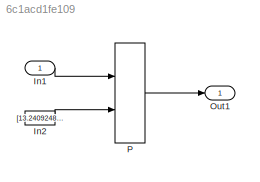
MODEL slx_6c1acd1fe109
KIND model
CONFIG AbsTol = auto
CONFIG EnableMultiTasking = off
CONFIG FixedStep = auto
CONFIG MaxStep = auto
CONFIG MinStep = auto
CONFIG RelTol = 1e-3
CONFIG SampleTimeConstraint = Unconstrained
CONFIG Solver = FixedStepDiscrete
CONFIG SolverName = FixedStepDiscrete
CONFIG StartTime = 0.0
CONFIG StopTime = 10.0
BLOCK [Inport] In1
  IconDisplay = Port number
  PortDimensions = 3
BLOCK [Constant] In2
  Value = [13.2409248253237 14.7409248253237 16.2409248253237 17.7409248253237 19.2409248253237 20.7409248253237 22.2409248253237 23.7409248253237 25.2409248253237 26.7409248253237 28.2409248253237 29.7409248253237 31.2409248253237 32.7409248253237 34.2409248253237 35.7409248253237 37.2409248253237 38.7409248253237 40.2409248253237 41.7409248253237 43.2409248253237 44.7409248253237 46.2409248253237 47.74092...<+60ch>
BLOCK [Outport] Out1
  IconDisplay = Port number
BLOCK [PreLookup] P
  BreakpointDataTypeStr = single
  BreakpointsData = [10:10:110]
  BreakpointsDataSource = Input port
  ExtrapMethod = Linear
  IndexSearchMethod = Linear search
  InitFcn = elems(1) = Simulink.BusElement;\nelems(1).Name = 'Index';\nelems(1).DataType = 'int8';\nelems(2) = Simulink.BusElement;\nelems(2).Name = 'Fraction';\nelems(2).DataType = 'double';\nkfBus = Simulink.Bus;\nkfBus.Elements = elems;\nclear elems;\nassignin('base', 'kfBus', kfBus);
  InputPortMap = u0,p1
  OutputBusDataTypeStr = Bus: kfBus
  OutputSelection = Index and fraction as bus
  Ports = [2, 1]
  RndMeth = Zero
  UseLastBreakpoint = on
LINE In1:1 -> P:1
LINE In2:1 -> P:2
LINE P:1 -> Out1:1
